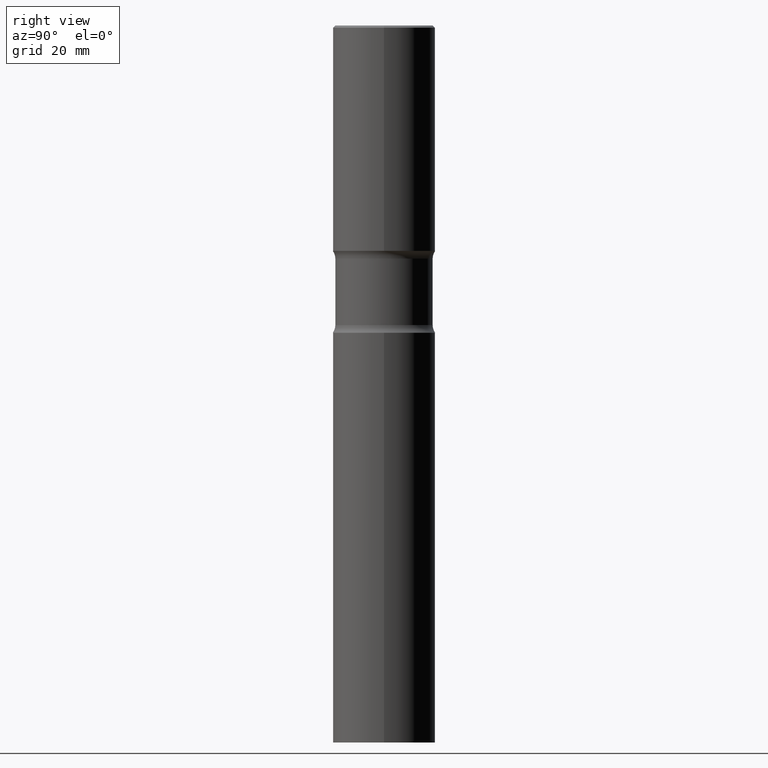
[diagram: clean part render]
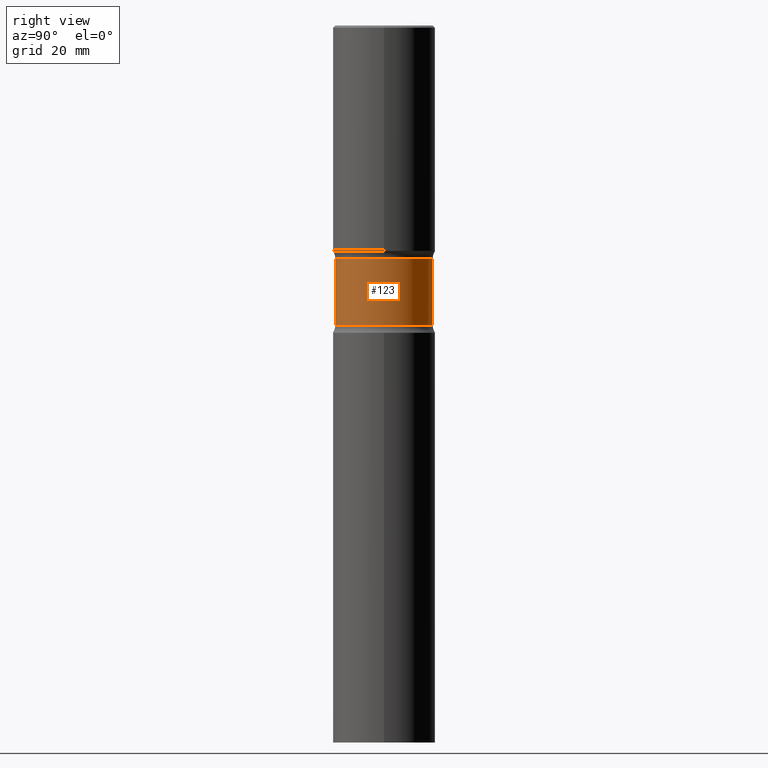
[diagram: same view with one face highlighted and labeled with its STEP entity id]
A machine part, right view. The second image highlights one B-rep face of the part: STEP entity #123.
In plain terms, the highlighted cylindrical surface (partial cylindrical patch) has radius 11.8745 mm, axis along (0, -0, -1).
Its self-contained STEP definition (entity closure, byte-faithful):
#21 = DIRECTION ( 'NONE',  ( 2.481809406732894494E-29, -3.439439530480224815E-15, -1.000000000000000000 ) ) ;
#41 = CARTESIAN_POINT ( 'NONE',  ( 3.264535051818400211E-15, 0.4674999999999900346, -2.878268949423748779 ) ) ;
#44 = DIRECTION ( 'NONE',  ( 6.982962677686266711E-15, 1.000000000000000000, -3.506115072082477581E-15 ) ) ;
#49 = VECTOR ( 'NONE', #252, 39.37007874015748143 ) ;
#57 = CIRCLE ( 'NONE', #495, 0.4675000000000000822 ) ;
#59 = LINE ( 'NONE', #267, #139 ) ;
#80 = EDGE_CURVE ( 'NONE', #386, #148, #59, .T. ) ;
#86 = AXIS2_PLACEMENT_3D ( 'NONE', #245, #124, #44 ) ;
#123 = ADVANCED_FACE ( 'NONE', ( #231 ), #188, .T. ) ;
#124 = DIRECTION ( 'NONE',  ( 2.481809406732894494E-29, -3.439439530480224815E-15, -1.000000000000000000 ) ) ;
#139 = VECTOR ( 'NONE', #496, 39.37007874015748143 ) ;
#148 = VERTEX_POINT ( 'NONE', #380 ) ;
#153 = ORIENTED_EDGE ( 'NONE', *, *, #497, .F. ) ;
#163 = DIRECTION ( 'NONE',  ( 6.982962677686265922E-15, 1.000000000000000000, -3.506115072082476398E-15 ) ) ;
#188 = CYLINDRICAL_SURFACE ( 'NONE', #335, 0.4675000000000000266 ) ;
#189 = ORIENTED_EDGE ( 'NONE', *, *, #80, .T. ) ;
#194 = CIRCLE ( 'NONE', #86, 0.4674999999999999156 ) ;
#201 = CARTESIAN_POINT ( 'NONE',  ( 7.036008428489641815E-29, -1.005330105573585586E-14, -2.878268949423747003 ) ) ;
#224 = EDGE_CURVE ( 'NONE', #247, #386, #194, .T. ) ;
#231 = FACE_OUTER_BOUND ( 'NONE', #355, .T. ) ;
#245 = CARTESIAN_POINT ( 'NONE',  ( 5.451775426455818062E-29, -7.857776452636094191E-15, -2.239931050576251970 ) ) ;
#247 = VERTEX_POINT ( 'NONE', #381 ) ;
#252 = DIRECTION ( 'NONE',  ( 2.481809406732894774E-29, -3.439439530480224815E-15, -1.000000000000000000 ) ) ;
#259 = VERTEX_POINT ( 'NONE', #41 ) ;
#267 = CARTESIAN_POINT ( 'NONE',  ( -3.207282813958021053E-15, -0.4675000000000238409, -6.889799999999998370 ) ) ;
#272 = ORIENTED_EDGE ( 'NONE', *, *, #362, .F. ) ;
#328 = CARTESIAN_POINT ( 'NONE',  ( 3.264535051818499213E-15, 0.4674999999999761569, -6.889800000000000146 ) ) ;
#335 = AXIS2_PLACEMENT_3D ( 'NONE', #339, #21, #487 ) ;
#339 = CARTESIAN_POINT ( 'NONE',  ( 1.699186392521087599E-28, -2.385071952883668146E-14, -6.889799999999999258 ) ) ;
#353 = DIRECTION ( 'NONE',  ( 2.481809406732894494E-29, -3.439439530480224815E-15, -1.000000000000000000 ) ) ;
#355 = EDGE_LOOP ( 'NONE', ( #438, #189, #272, #153 ) ) ;
#362 = EDGE_CURVE ( 'NONE', #259, #148, #57, .T. ) ;
#380 = CARTESIAN_POINT ( 'NONE',  ( -3.291838451780652477E-15, -0.4675000000000101297, -2.878268949423745227 ) ) ;
#381 = CARTESIAN_POINT ( 'NONE',  ( 3.264535051818383251E-15, 0.4674999999999920886, -2.239931050576253746 ) ) ;
#386 = VERTEX_POINT ( 'NONE', #399 ) ;
#399 = CARTESIAN_POINT ( 'NONE',  ( -3.291838451780671409E-15, -0.4675000000000077982, -2.239931050576250193 ) ) ;
#437 = LINE ( 'NONE', #328, #49 ) ;
#438 = ORIENTED_EDGE ( 'NONE', *, *, #224, .T. ) ;
#487 = DIRECTION ( 'NONE',  ( 6.982962677686265922E-15, 1.000000000000000000, -2.337410048054984397E-15 ) ) ;
#495 = AXIS2_PLACEMENT_3D ( 'NONE', #201, #353, #163 ) ;
#496 = DIRECTION ( 'NONE',  ( 2.481809406732894774E-29, -3.439439530480224815E-15, -1.000000000000000000 ) ) ;
#497 = EDGE_CURVE ( 'NONE', #247, #259, #437, .T. ) ;